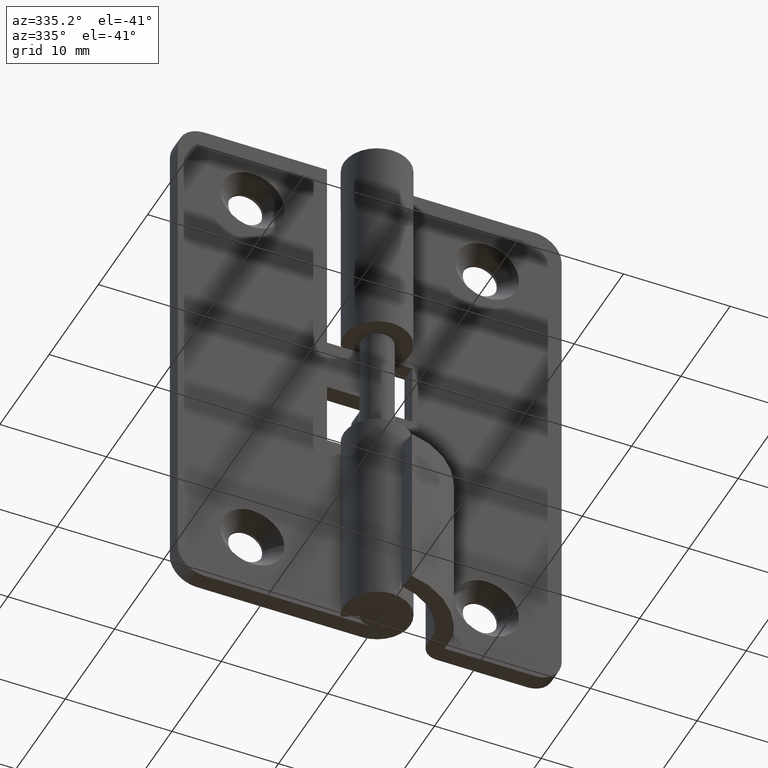
[diagram: clean part render]
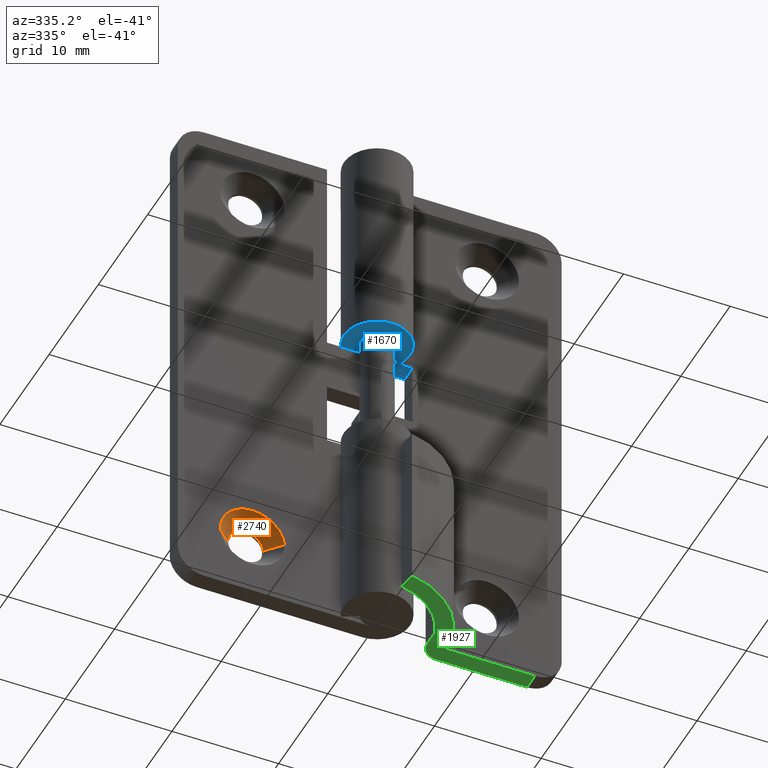
[diagram: same view with three faces highlighted in distinct colors, each labeled with its STEP entity id]
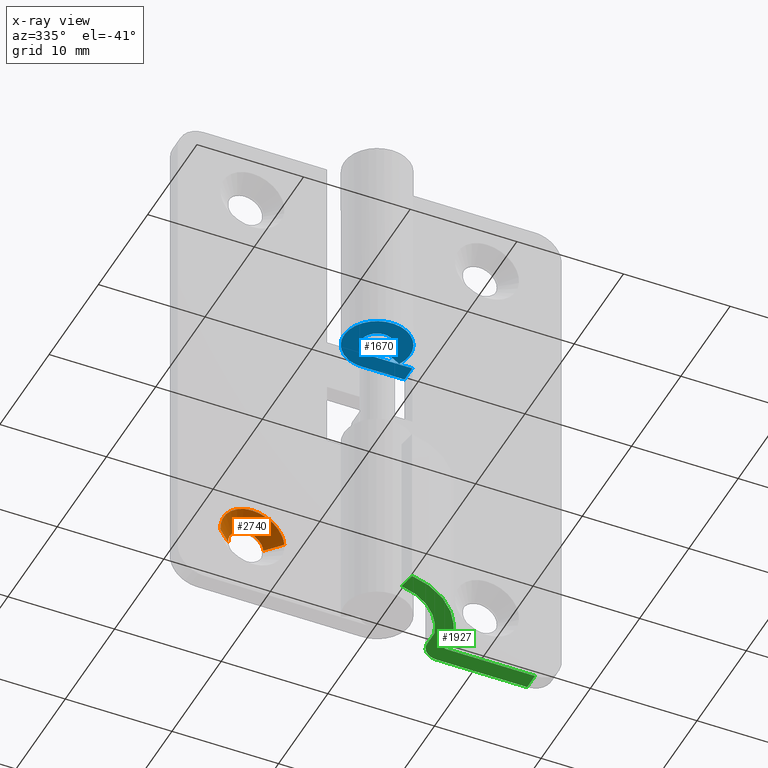
[diagram: x-ray of the same camera — body ghosted, the three highlighted faces saturated]
A machine part, auxiliary view with three faces highlighted in distinct colors.
The next image is the same camera in x-ray (body ghosted, the three faces saturated) — at least one of them is partly hidden behind the body in this view.
Their STEP definitions:

[orange] entity #2740 — the highlighted face is a freeform B-spline surface patch.
#2545=CARTESIAN_POINT('',(-12.646930415095150,2.849999999992002,5.899261627725922));
#2546=VERTEX_POINT('',#2545);
#2590=CARTESIAN_POINT('',(-9.355078423970969,2.849999999923365,6.129450136210352));
#2591=VERTEX_POINT('',#2590);
#2607=CARTESIAN_POINT('',(-11.0,2.850000000000000,7.650000000000000));
#2608=VERTEX_POINT('',#2607);
#2609=CARTESIAN_POINT('',(-11.0,2.850000000000000,7.650000000000000));
#2610=CARTESIAN_POINT('',(-9.474748294720127,2.850000000000000,7.650000000000000));
#2611=CARTESIAN_POINT('',(-9.355078423970969,2.849999999923365,6.129450136210352));
#2619=(BOUNDED_CURVE()B_SPLINE_CURVE(2,(#2609,#2610,#2611),.UNSPECIFIED.,.F.,.U.)B_SPLINE_CURVE_WITH_KNOTS((3,3),(0.0,0.236331300511747),.UNSPECIFIED.)CURVE()GEOMETRIC_REPRESENTATION_ITEM()RATIONAL_B_SPLINE_CURVE((1.0,0.723120658746980,0.969723355919257))REPRESENTATION_ITEM(''));
#2620=EDGE_CURVE('',#2608,#2591,#2619,.T.);
#2622=CARTESIAN_POINT('',(-12.646930415095147,2.849999999992002,5.899261627725922));
#2623=CARTESIAN_POINT('',(-12.650007999999994,2.850000000000000,5.949579799597885));
#2624=CARTESIAN_POINT('',(-12.650008000000000,2.850000000000000,5.999992000000000));
#2625=CARTESIAN_POINT('',(-12.650007999999998,2.850000000000001,7.650000000000000));
#2626=CARTESIAN_POINT('',(-11.0,2.850000000000000,7.650000000000000));
#2634=(BOUNDED_CURVE()B_SPLINE_CURVE(2,(#2622,#2623,#2624,#2625,#2626),.UNSPECIFIED.,.F.,.U.)B_SPLINE_CURVE_WITH_KNOTS((3,2,3),(0.739332983860654,0.750000000000000,1.0),.UNSPECIFIED.)CURVE()GEOMETRIC_REPRESENTATION_ITEM()RATIONAL_B_SPLINE_CURVE((0.976072088006165,0.987502813231247,1.0,0.707106781186548,1.0))REPRESENTATION_ITEM(''));
#2635=EDGE_CURVE('',#2546,#2608,#2634,.T.);
#2674=CARTESIAN_POINT('',(-9.388724384015164,2.883750000000001,6.126802141142896));
#2675=CARTESIAN_POINT('',(-9.515534525158060,2.883750000000001,7.738077757127732));
#2676=CARTESIAN_POINT('',(-11.126810141142901,2.883750000000001,7.611267615984836));
#2677=CARTESIAN_POINT('',(-12.738085757127731,2.883750000000001,7.484457474841940));
#2678=CARTESIAN_POINT('',(-12.611275615984839,2.883750000000001,5.873181858857103));
#2679=CARTESIAN_POINT('',(-7.974752914448117,1.465406250000000,6.238084109199138));
#2680=CARTESIAN_POINT('',(-8.212845023647256,1.465406250000000,9.263331194751022));
#2681=CARTESIAN_POINT('',(-11.238092109199140,1.465406250000000,9.025239085551883));
#2682=CARTESIAN_POINT('',(-14.263339194751024,1.465406250000000,8.787146976352744));
#2683=CARTESIAN_POINT('',(-14.025247085551880,1.465406250000000,5.761899890800862));
#2691=(BOUNDED_SURFACE()B_SPLINE_SURFACE(2,1,((#2674,#2679),(#2675,#2680),(#2676,#2681),(#2677,#2682),(#2678,#2683)),.UNSPECIFIED.,.F.,.F.,.U.)B_SPLINE_SURFACE_WITH_KNOTS((3,2,3),(2,2),(0.0,5.027892805004512,10.055785610009030),(0.0,2.005840967357116),.UNSPECIFIED.)GEOMETRIC_REPRESENTATION_ITEM()RATIONAL_B_SPLINE_SURFACE(((1.0,1.0),(0.707106781186548,0.707106781186548),(1.0,1.0),(0.707106781186548,0.707106781186548),(1.0,1.0)))REPRESENTATION_ITEM('')SURFACE());
#2692=ORIENTED_EDGE('',*,*,#2620,.T.);
#2693=CARTESIAN_POINT('',(-8.009240023461411,1.499999999998671,6.235369914866425));
#2694=VERTEX_POINT('',#2693);
#2695=CARTESIAN_POINT('',(-9.355078423970969,2.849999999923365,6.129450136210352));
#2696=CARTESIAN_POINT('',(-8.009240023461411,1.499999999998671,6.235369914866425));
#2697=QUASI_UNIFORM_CURVE('',1,(#2695,#2696),.UNSPECIFIED.,.F.,.U.);
#2698=EDGE_CURVE('',#2591,#2694,#2697,.T.);
#2699=ORIENTED_EDGE('',*,*,#2698,.T.);
#2700=CARTESIAN_POINT('',(-11.0,1.500000000000000,9.000000000000002));
#2701=VERTEX_POINT('',#2700);
#2702=CARTESIAN_POINT('',(-11.0,1.500000000000000,9.000000000000002));
#2703=CARTESIAN_POINT('',(-8.226821129920085,1.500000000000000,9.000000000000002));
#2704=CARTESIAN_POINT('',(-8.009240023461411,1.499999999998671,6.235369914866425));
#2712=(BOUNDED_CURVE()B_SPLINE_CURVE(2,(#2702,#2703,#2704),.UNSPECIFIED.,.F.,.U.)B_SPLINE_CURVE_WITH_KNOTS((3,3),(0.0,0.236331300631618),.UNSPECIFIED.)CURVE()GEOMETRIC_REPRESENTATION_ITEM()RATIONAL_B_SPLINE_CURVE((1.0,0.723120658606543,0.969723356169418))REPRESENTATION_ITEM(''));
#2713=EDGE_CURVE('',#2701,#2694,#2712,.T.);
#2714=ORIENTED_EDGE('',*,*,#2713,.F.);
#2715=CARTESIAN_POINT('',(-13.990759976538589,1.499999999998671,5.764614085133575));
#2716=VERTEX_POINT('',#2715);
#2717=CARTESIAN_POINT('',(-13.990759976538593,1.499999999998671,5.764614085133575));
#2718=CARTESIAN_POINT('',(-14.000007999999998,1.500000000000000,5.882121364646069));
#2719=CARTESIAN_POINT('',(-14.000007999999999,1.500000000000000,5.999992000000000));
#2720=CARTESIAN_POINT('',(-14.000007999999998,1.500000000000000,9.000000000000002));
#2721=CARTESIAN_POINT('',(-11.0,1.500000000000000,9.000000000000002));
#2729=(BOUNDED_CURVE()B_SPLINE_CURVE(2,(#2717,#2718,#2719,#2720,#2721),.UNSPECIFIED.,.F.,.U.)B_SPLINE_CURVE_WITH_KNOTS((3,2,3),(0.736331300631618,0.750000000000000,1.0),.UNSPECIFIED.)CURVE()GEOMETRIC_REPRESENTATION_ITEM()RATIONAL_B_SPLINE_CURVE((0.969723356169419,0.983986122580005,1.0,0.707106781186548,1.0))REPRESENTATION_ITEM(''));
#2730=EDGE_CURVE('',#2716,#2701,#2729,.T.);
#2731=ORIENTED_EDGE('',*,*,#2730,.F.);
#2732=CARTESIAN_POINT('',(-12.646930415095150,2.849999999992002,5.899261627725922));
#2733=CARTESIAN_POINT('',(-13.990759976538589,1.499999999998671,5.764614085133575));
#2734=QUASI_UNIFORM_CURVE('',1,(#2732,#2733),.UNSPECIFIED.,.F.,.U.);
#2735=EDGE_CURVE('',#2546,#2716,#2734,.T.);
#2736=ORIENTED_EDGE('',*,*,#2735,.F.);
#2737=ORIENTED_EDGE('',*,*,#2635,.T.);
#2738=EDGE_LOOP('',(#2692,#2699,#2714,#2731,#2736,#2737));
#2739=FACE_OUTER_BOUND('',#2738,.T.);
#2740=ADVANCED_FACE('',(#2739),#2691,.F.);

[blue] entity #1670 — the highlighted face is a freeform B-spline surface patch.
#1593=CARTESIAN_POINT('',(-3.454387554698215,-3.408822055394450,30.500000000000000));
#1594=CARTESIAN_POINT('',(4.354632929700204,-3.408822055394450,30.500000000000000));
#1595=CARTESIAN_POINT('',(-3.454387554698215,3.409639435336676,30.500000000000000));
#1596=CARTESIAN_POINT('',(4.354632929700204,3.409639435336676,30.500000000000000));
#1597=B_SPLINE_SURFACE_WITH_KNOTS('',1,1,((#1593,#1595),(#1594,#1596)),.UNSPECIFIED.,.F.,.F.,.U.,(2,2),(2,2),(0.0,7.809020484398419),(0.0,6.818461490731126),.UNSPECIFIED.);
#1598=CARTESIAN_POINT('',(4.0,1.499984999999926,30.500000000000000));
#1599=VERTEX_POINT('',#1598);
#1600=CARTESIAN_POINT('',(4.0,3.099991000000000,30.500000000000000));
#1601=VERTEX_POINT('',#1600);
#1602=CARTESIAN_POINT('',(4.0,1.499984999999926,30.500000000000000));
#1603=CARTESIAN_POINT('',(4.0,3.099991000000000,30.500000000000000));
#1604=QUASI_UNIFORM_CURVE('',1,(#1602,#1603),.UNSPECIFIED.,.F.,.U.);
#1605=EDGE_CURVE('',#1599,#1601,#1604,.T.);
#1606=ORIENTED_EDGE('',*,*,#1605,.F.);
#1607=CARTESIAN_POINT('',(0.006701187185080,1.499984999999896,30.500000000000000));
#1608=VERTEX_POINT('',#1607);
#1609=CARTESIAN_POINT('',(0.006701187185080,1.499984999999896,30.500000000000000));
#1610=CARTESIAN_POINT('',(4.0,1.499984999999926,30.500000000000000));
#1611=QUASI_UNIFORM_CURVE('',1,(#1609,#1610),.UNSPECIFIED.,.F.,.U.);
#1612=EDGE_CURVE('',#1608,#1599,#1611,.T.);
#1613=ORIENTED_EDGE('',*,*,#1612,.F.);
#1614=CARTESIAN_POINT('',(1.325794462767846,0.701605645161240,30.500000000000000));
#1615=VERTEX_POINT('',#1614);
#1616=CARTESIAN_POINT('',(1.325794462767846,0.701605645161241,30.500000000000000));
#1617=CARTESIAN_POINT('',(1.859655118691053,-0.307213544676710,30.500000000000000));
#1618=CARTESIAN_POINT('',(1.029702701901283,-1.090732749031571,30.500000000000000));
#1619=CARTESIAN_POINT('',(0.199750285111511,-1.874251953386433,30.500000000000000));
#1620=CARTESIAN_POINT('',(-0.776697343935812,-1.283258395506211,30.500000000000000));
#1621=CARTESIAN_POINT('',(-1.753144972983133,-0.692264837625989,30.500000000000000));
#1622=CARTESIAN_POINT('',(-1.443900721880573,0.406412253646999,30.500000000000000));
#1623=CARTESIAN_POINT('',(-1.134656470778013,1.505089344919987,30.500000000000000));
#1624=CARTESIAN_POINT('',(0.006701187185079,1.499984999999896,30.500000000000000));
#1632=(BOUNDED_CURVE()B_SPLINE_CURVE(2,(#1616,#1617,#1618,#1619,#1620,#1621,#1622,#1623,#1624),.UNSPECIFIED.,.F.,.U.)B_SPLINE_CURVE_WITH_KNOTS((3,2,2,2,3),(0.0,0.250000000000000,0.500000000000000,0.750000000000000,1.0),.UNSPECIFIED.)CURVE()GEOMETRIC_REPRESENTATION_ITEM()RATIONAL_B_SPLINE_CURVE((1.0,0.795812146304312,1.0,0.795812146304312,1.0,0.795812146304312,1.0,0.795812146304312,1.0))REPRESENTATION_ITEM(''));
#1633=EDGE_CURVE('',#1615,#1608,#1632,.T.);
#1634=ORIENTED_EDGE('',*,*,#1633,.F.);
#1635=CARTESIAN_POINT('',(2.739982689720425,1.449984999999896,30.500000000000000));
#1636=VERTEX_POINT('',#1635);
#1637=CARTESIAN_POINT('',(2.739982689720425,1.449984999999896,30.500000000000000));
#1638=CARTESIAN_POINT('',(1.325794462767846,0.701605645161240,30.500000000000000));
#1639=QUASI_UNIFORM_CURVE('',1,(#1637,#1638),.UNSPECIFIED.,.F.,.U.);
#1640=EDGE_CURVE('',#1636,#1615,#1639,.T.);
#1641=ORIENTED_EDGE('',*,*,#1640,.F.);
#1642=CARTESIAN_POINT('',(0.007462934341625,3.099991000000000,30.500000000000000));
#1643=VERTEX_POINT('',#1642);
#1644=CARTESIAN_POINT('',(2.739982689720424,1.449984999999897,30.500000000000000));
#1645=CARTESIAN_POINT('',(3.842704569042448,-0.633792818371950,30.500000000000004));
#1646=CARTESIAN_POINT('',(2.129221735772297,-2.253083440700915,30.500000000000000));
#1647=CARTESIAN_POINT('',(0.415738902502146,-3.872374063029881,30.500000000000004));
#1648=CARTESIAN_POINT('',(-1.602431271681201,-2.653721246387343,30.500000000000000));
#1649=CARTESIAN_POINT('',(-3.620601445864549,-1.435068429744806,30.500000000000004));
#1650=CARTESIAN_POINT('',(-2.985349691904453,0.835301749006813,30.500000000000000));
#1651=CARTESIAN_POINT('',(-2.350097937944357,3.105671927758428,30.500000000000004));
#1652=CARTESIAN_POINT('',(0.007462934341621,3.099990999999988,30.500000000000000));
#1660=(BOUNDED_CURVE()B_SPLINE_CURVE(2,(#1644,#1645,#1646,#1647,#1648,#1649,#1650,#1651,#1652),.UNSPECIFIED.,.F.,.U.)B_SPLINE_CURVE_WITH_KNOTS((3,2,2,2,3),(0.0,0.250000000000000,0.500000000000000,0.750000000000000,1.0),.UNSPECIFIED.)CURVE()GEOMETRIC_REPRESENTATION_ITEM()RATIONAL_B_SPLINE_CURVE((1.0,0.795968235131037,1.0,0.795968235131037,1.0,0.795968235131037,1.0,0.795968235131037,1.0))REPRESENTATION_ITEM(''));
#1661=EDGE_CURVE('',#1636,#1643,#1660,.T.);
#1662=ORIENTED_EDGE('',*,*,#1661,.T.);
#1663=CARTESIAN_POINT('',(4.0,3.099991000000000,30.500000000000000));
#1664=CARTESIAN_POINT('',(0.007462934341625,3.099991000000000,30.500000000000000));
#1665=QUASI_UNIFORM_CURVE('',1,(#1663,#1664),.UNSPECIFIED.,.F.,.U.);
#1666=EDGE_CURVE('',#1601,#1643,#1665,.T.);
#1667=ORIENTED_EDGE('',*,*,#1666,.F.);
#1668=EDGE_LOOP('',(#1606,#1613,#1634,#1641,#1662,#1667));
#1669=FACE_OUTER_BOUND('',#1668,.T.);
#1670=ADVANCED_FACE('',(#1669),#1597,.F.);

[green] entity #1927 — the highlighted face is a freeform B-spline surface patch.
#1156=CARTESIAN_POINT('',(7.000001999999890,3.099991000000000,0.0));
#1157=VERTEX_POINT('',#1156);
#1163=CARTESIAN_POINT('',(5.400001999999890,1.499991000000000,0.0));
#1164=VERTEX_POINT('',#1163);
#1165=CARTESIAN_POINT('',(5.400001999999890,1.499991000000000,0.0));
#1166=CARTESIAN_POINT('',(5.400001999999890,3.099990999999999,0.0));
#1167=CARTESIAN_POINT('',(7.000001999999890,3.099991000000000,0.0));
#1175=(BOUNDED_CURVE()B_SPLINE_CURVE(2,(#1165,#1166,#1167),.UNSPECIFIED.,.F.,.U.)CURVE()GEOMETRIC_REPRESENTATION_ITEM()QUASI_UNIFORM_CURVE()RATIONAL_B_SPLINE_CURVE((1.0,0.707106781186548,1.0))REPRESENTATION_ITEM(''));
#1176=EDGE_CURVE('',#1164,#1157,#1175,.T.);
#1265=CARTESIAN_POINT('',(0.549644998060245,-5.902137139268600,0.0));
#1266=VERTEX_POINT('',#1265);
#1267=CARTESIAN_POINT('',(7.000000999999840,-0.225592976466064,0.0));
#1268=VERTEX_POINT('',#1267);
#1269=CARTESIAN_POINT('',(0.549644998060242,-5.902137139268579,0.0));
#1270=CARTESIAN_POINT('',(5.550602790924178,-5.081714564584165,0.0));
#1271=CARTESIAN_POINT('',(7.000000999999843,-0.225592976466070,0.0));
#1279=(BOUNDED_CURVE()B_SPLINE_CURVE(2,(#1269,#1270,#1271),.UNSPECIFIED.,.F.,.U.)CURVE()GEOMETRIC_REPRESENTATION_ITEM()QUASI_UNIFORM_CURVE()RATIONAL_B_SPLINE_CURVE((1.0,0.847748557675013,1.0))REPRESENTATION_ITEM(''));
#1280=EDGE_CURVE('',#1266,#1268,#1279,.T.);
#1301=CARTESIAN_POINT('',(0.290622503580198,-4.323242795953190,0.0));
#1302=VERTEX_POINT('',#1301);
#1303=CARTESIAN_POINT('',(0.290622503580198,-4.323242795953190,0.0));
#1304=CARTESIAN_POINT('',(0.549644998060245,-5.902137139268600,0.0));
#1305=QUASI_UNIFORM_CURVE('',1,(#1303,#1304),.UNSPECIFIED.,.F.,.U.);
#1306=EDGE_CURVE('',#1302,#1266,#1305,.T.);
#1332=CARTESIAN_POINT('',(5.400001999999940,0.021241088680936,0.0));
#1333=VERTEX_POINT('',#1332);
#1334=CARTESIAN_POINT('',(0.290622503580198,-4.323242795953189,0.0));
#1335=CARTESIAN_POINT('',(4.153511889029104,-3.689523859181996,0.0));
#1336=CARTESIAN_POINT('',(5.400001999999939,0.021241088680931,0.0));
#1344=(BOUNDED_CURVE()B_SPLINE_CURVE(2,(#1334,#1335,#1336),.UNSPECIFIED.,.F.,.U.)CURVE()GEOMETRIC_REPRESENTATION_ITEM()QUASI_UNIFORM_CURVE()RATIONAL_B_SPLINE_CURVE((1.0,0.856647176057252,1.0))REPRESENTATION_ITEM(''));
#1345=EDGE_CURVE('',#1302,#1333,#1344,.T.);
#1364=CARTESIAN_POINT('',(5.400001999999890,1.499991000000000,0.0));
#1365=CARTESIAN_POINT('',(5.400001999999940,0.021241088680936,0.0));
#1366=QUASI_UNIFORM_CURVE('',1,(#1364,#1365),.UNSPECIFIED.,.F.,.U.);
#1367=EDGE_CURVE('',#1164,#1333,#1366,.T.);
#1378=CARTESIAN_POINT('',(6.999999999999901,1.499984999999926,0.0));
#1379=VERTEX_POINT('',#1378);
#1380=CARTESIAN_POINT('',(7.000000999999840,-0.225592976466064,0.0));
#1381=CARTESIAN_POINT('',(6.999999999999901,1.499984999999926,0.0));
#1382=QUASI_UNIFORM_CURVE('',1,(#1380,#1381),.UNSPECIFIED.,.F.,.U.);
#1383=EDGE_CURVE('',#1268,#1379,#1382,.T.);
#1788=CARTESIAN_POINT('',(15.500000000000000,3.099991000000000,0.0));
#1789=VERTEX_POINT('',#1788);
#1810=CARTESIAN_POINT('',(15.500000000000000,1.499984999999896,0.0));
#1811=VERTEX_POINT('',#1810);
#1825=CARTESIAN_POINT('',(15.500000000000000,3.099991000000000,0.0));
#1826=CARTESIAN_POINT('',(15.500000000000000,1.499984999999896,0.0));
#1827=QUASI_UNIFORM_CURVE('',1,(#1825,#1826),.UNSPECIFIED.,.F.,.U.);
#1828=EDGE_CURVE('',#1789,#1811,#1827,.T.);
#1903=CARTESIAN_POINT('',(-0.469085872887248,3.549647367614134,0.0));
#1904=CARTESIAN_POINT('',(16.259708784414741,3.549647367614134,0.0));
#1905=CARTESIAN_POINT('',(-0.469085872887248,-6.351793667853329,0.0));
#1906=CARTESIAN_POINT('',(16.259708784414741,-6.351793667853329,0.0));
#1907=B_SPLINE_SURFACE_WITH_KNOTS('',1,1,((#1903,#1905),(#1904,#1906)),.UNSPECIFIED.,.F.,.F.,.U.,(2,2),(2,2),(0.0,16.728794657301989),(0.0,9.901441035467464),.UNSPECIFIED.);
#1908=ORIENTED_EDGE('',*,*,#1367,.F.);
#1909=ORIENTED_EDGE('',*,*,#1176,.T.);
#1910=CARTESIAN_POINT('',(7.000001999999890,3.099991000000000,0.0));
#1911=CARTESIAN_POINT('',(15.500000000000000,3.099991000000000,0.0));
#1912=QUASI_UNIFORM_CURVE('',1,(#1910,#1911),.UNSPECIFIED.,.F.,.U.);
#1913=EDGE_CURVE('',#1157,#1789,#1912,.T.);
#1914=ORIENTED_EDGE('',*,*,#1913,.T.);
#1915=ORIENTED_EDGE('',*,*,#1828,.T.);
#1916=CARTESIAN_POINT('',(15.500000000000000,1.499984999999896,0.0));
#1917=CARTESIAN_POINT('',(6.999999999999901,1.499984999999926,0.0));
#1918=QUASI_UNIFORM_CURVE('',1,(#1916,#1917),.UNSPECIFIED.,.F.,.U.);
#1919=EDGE_CURVE('',#1811,#1379,#1918,.T.);
#1920=ORIENTED_EDGE('',*,*,#1919,.T.);
#1921=ORIENTED_EDGE('',*,*,#1383,.F.);
#1922=ORIENTED_EDGE('',*,*,#1280,.F.);
#1923=ORIENTED_EDGE('',*,*,#1306,.F.);
#1924=ORIENTED_EDGE('',*,*,#1345,.T.);
#1925=EDGE_LOOP('',(#1908,#1909,#1914,#1915,#1920,#1921,#1922,#1923,#1924));
#1926=FACE_OUTER_BOUND('',#1925,.T.);
#1927=ADVANCED_FACE('',(#1926),#1907,.T.);